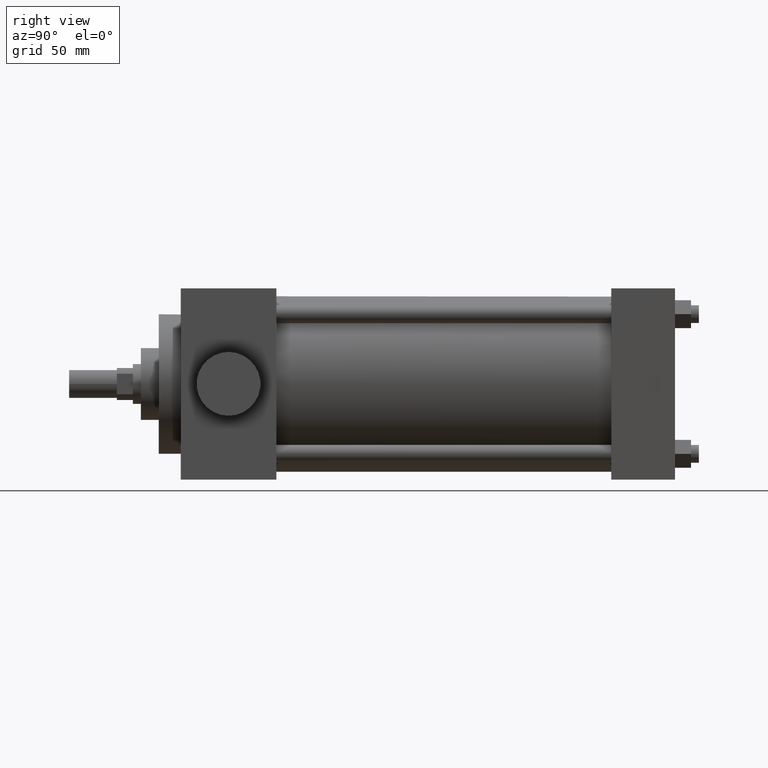
[diagram: clean part render]
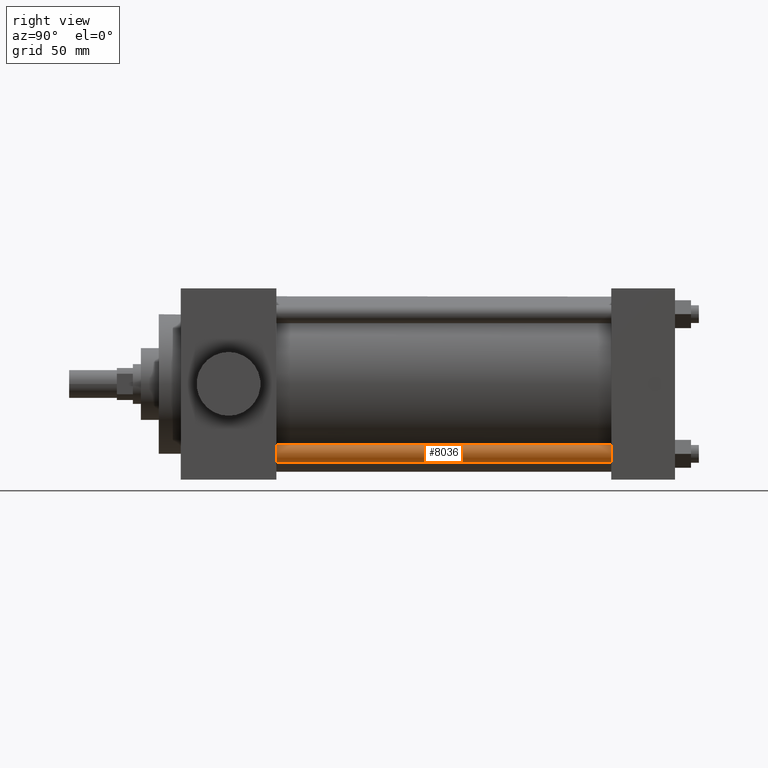
[diagram: same view with one face highlighted and labeled with its STEP entity id]
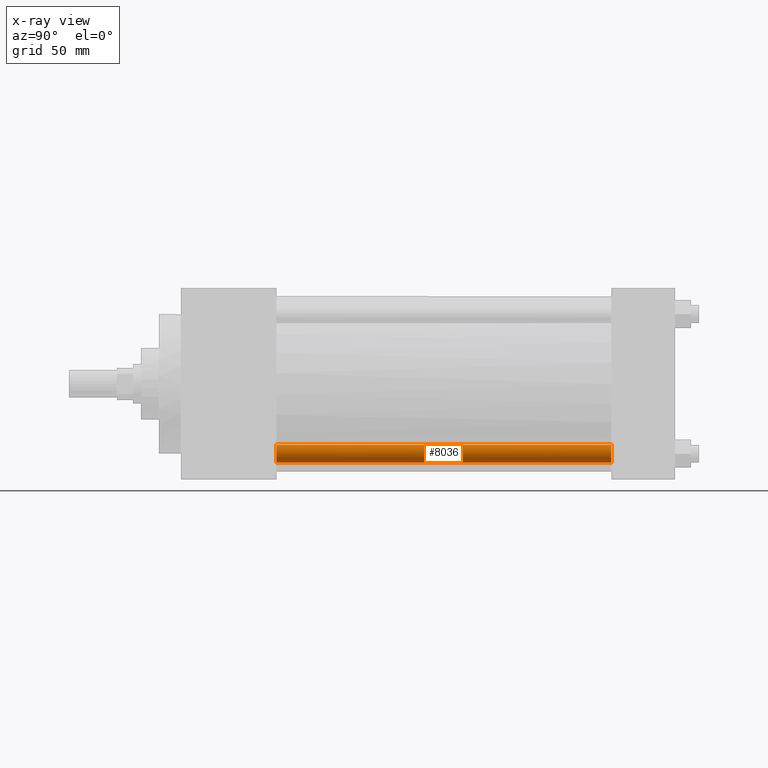
[diagram: x-ray of the same camera — body ghosted, the highlighted face saturated]
A machine part, right view. The second image highlights one B-rep face of the part: STEP entity #8036.
The next image is the same camera in x-ray: the body ghosted, the highlighted face saturated — about 0% of this face is hidden behind the body in this view.
In plain terms, the highlighted cylindrical surface (bore or boss wall) has radius 3.5687 mm, axis along (0, -1, 0).
Its self-contained STEP definition (entity closure, byte-faithful):
#520=EDGE_CURVE('',#526,#526,#521,.T.);
#521=CIRCLE('',#522,3.568700000E+000);
#522=AXIS2_PLACEMENT_3D('',#523,#524,#525);
#523=CARTESIAN_POINT('',(2.781300000E+001,6.350000000E+001,-2.781300000E+001));
#524=DIRECTION('',(0.0E+000,-1.0E+000,0.0E+000));
#525=DIRECTION('',(0.0E+000,0.0E+000,-1.0E+000));
#526=VERTEX_POINT('',#527);
#527=CARTESIAN_POINT('',(2.781300000E+001,6.350000000E+001,-3.138170000E+001));
#1401=FACE_OUTER_BOUND('',#1403,.T.);
#1402=FACE_BOUND('',#1404,.T.);
#1403=EDGE_LOOP('',(#1405));
#1404=EDGE_LOOP('',(#1406));
#1405=ORIENTED_EDGE('',*,*,#1455,.F.);
#1406=ORIENTED_EDGE('',*,*,#520,.F.);
#1407=CYLINDRICAL_SURFACE('',#1408,3.568700000E+000);
#1408=AXIS2_PLACEMENT_3D('',#1409,#1410,#1411);
#1409=CARTESIAN_POINT('',(2.781300000E+001,1.968500000E+002,-2.781300000E+001));
#1410=DIRECTION('',(0.0E+000,-1.0E+000,0.0E+000));
#1411=DIRECTION('',(0.0E+000,0.0E+000,-1.0E+000));
#1455=EDGE_CURVE('',#1461,#1461,#1456,.T.);
#1456=CIRCLE('',#1457,3.568700000E+000);
#1457=AXIS2_PLACEMENT_3D('',#1458,#1459,#1460);
#1458=CARTESIAN_POINT('',(2.781300000E+001,1.968500000E+002,-2.781300000E+001));
#1459=DIRECTION('',(0.0E+000,1.0E+000,0.0E+000));
#1460=DIRECTION('',(1.0E+000,0.0E+000,0.0E+000));
#1461=VERTEX_POINT('',#1462);
#1462=CARTESIAN_POINT('',(3.138170000E+001,1.968500000E+002,-2.781300000E+001));
#8036=ADVANCED_FACE('',(#1401,#1402),#1407,.T.);